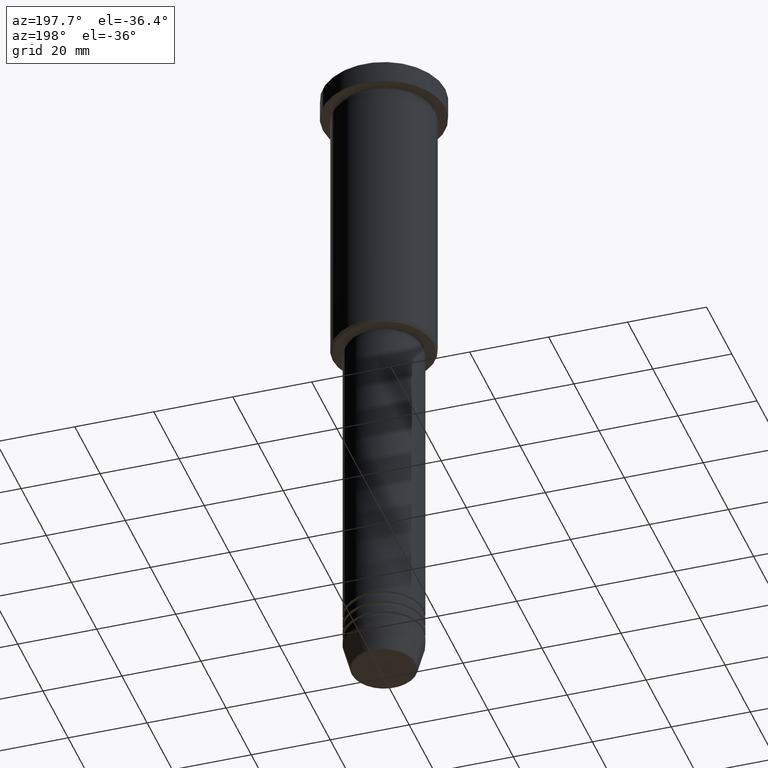
[diagram: clean part render]
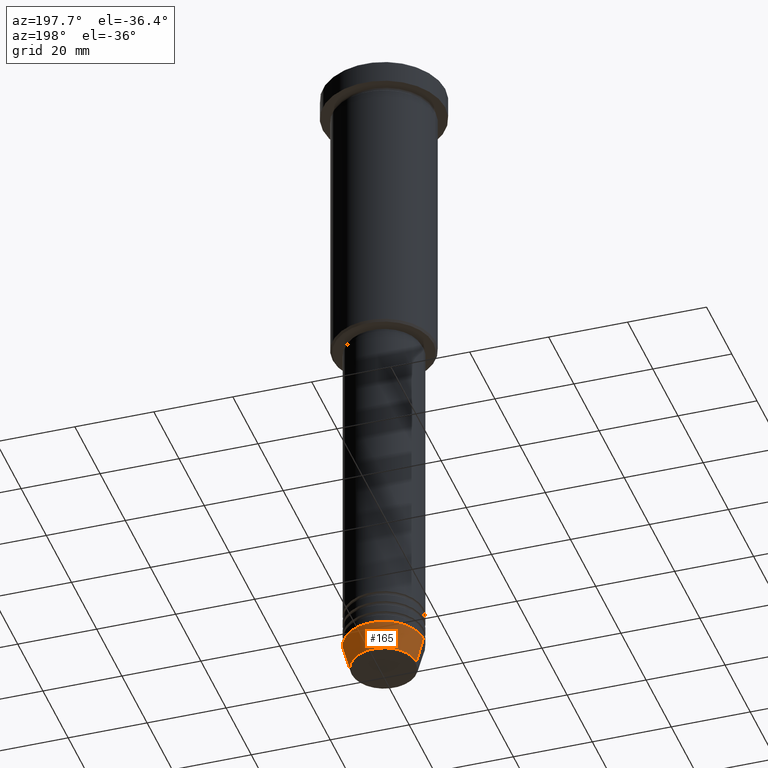
[diagram: same view with one face highlighted and labeled with its STEP entity id]
A machine part, auxiliary view. The second image highlights one B-rep face of the part: STEP entity #165.
In plain terms, the highlighted conical surface has half-angle 15 deg.
Its self-contained STEP definition (entity closure, byte-faithful):
#14 = CONICAL_SURFACE ( 'NONE', #317, 10.00000000000000000, 0.2617993877991500740 ) ;
#39 = DIRECTION ( 'NONE',  ( -0.000000000000000000, -0.000000000000000000, 1.000000000000000000 ) ) ;
#136 = ORIENTED_EDGE ( 'NONE', *, *, #352, .F. ) ;
#165 = ADVANCED_FACE ( 'NONE', ( #230 ), #14, .T. ) ;
#182 = DIRECTION ( 'NONE',  ( -0.000000000000000000, -0.000000000000000000, 1.000000000000000000 ) ) ;
#186 = EDGE_LOOP ( 'NONE', ( #766, #930, #136, #1143 ) ) ;
#230 = FACE_OUTER_BOUND ( 'NONE', #186, .T. ) ;
#234 = DIRECTION ( 'NONE',  ( 1.000000000000000000, 0.000000000000000000, 0.000000000000000000 ) ) ;
#247 = CIRCLE ( 'NONE', #914, 8.223655072137198374 ) ;
#317 = AXIS2_PLACEMENT_3D ( 'NONE', #348, #39, #234 ) ;
#336 = LINE ( 'NONE', #546, #856 ) ;
#348 = CARTESIAN_POINT ( 'NONE',  ( 0.000000000000000000, 0.000000000000000000, -164.0000000000000000 ) ) ;
#352 = EDGE_CURVE ( 'NONE', #863, #607, #518, .T. ) ;
#356 = DIRECTION ( 'NONE',  ( -0.000000000000000000, -0.000000000000000000, 1.000000000000000000 ) ) ;
#373 = DIRECTION ( 'NONE',  ( 1.000000000000000000, 0.000000000000000000, 0.000000000000000000 ) ) ;
#395 = VERTEX_POINT ( 'NONE', #768 ) ;
#518 = CIRCLE ( 'NONE', #580, 10.00000000000000000 ) ;
#527 = DIRECTION ( 'NONE',  ( 0.2588190451025213501, 0.000000000000000000, 0.9659258262890680902 ) ) ;
#546 = CARTESIAN_POINT ( 'NONE',  ( 10.00000000000000000, 0.000000000000000000, -164.0000000000000000 ) ) ;
#570 = EDGE_CURVE ( 'NONE', #1112, #863, #336, .T. ) ;
#580 = AXIS2_PLACEMENT_3D ( 'NONE', #916, #356, #941 ) ;
#607 = VERTEX_POINT ( 'NONE', #1002 ) ;
#725 = CARTESIAN_POINT ( 'NONE',  ( 8.223655072137198374, 0.000000000000000000, -170.6294095225512422 ) ) ;
#739 = CARTESIAN_POINT ( 'NONE',  ( 0.000000000000000000, 0.000000000000000000, -170.6294095225512422 ) ) ;
#766 = ORIENTED_EDGE ( 'NONE', *, *, #1157, .T. ) ;
#768 = CARTESIAN_POINT ( 'NONE',  ( -8.223655072137198374, 1.115877042642912448E-15, -170.6294095225512422 ) ) ;
#856 = VECTOR ( 'NONE', #527, 1000.000000000000000 ) ;
#859 = CARTESIAN_POINT ( 'NONE',  ( 10.00000000000000000, 0.000000000000000000, -164.0000000000000000 ) ) ;
#863 = VERTEX_POINT ( 'NONE', #859 ) ;
#914 = AXIS2_PLACEMENT_3D ( 'NONE', #739, #182, #373 ) ;
#916 = CARTESIAN_POINT ( 'NONE',  ( 0.000000000000000000, 0.000000000000000000, -164.0000000000000000 ) ) ;
#930 = ORIENTED_EDGE ( 'NONE', *, *, #1121, .T. ) ;
#941 = DIRECTION ( 'NONE',  ( 1.000000000000000000, 0.000000000000000000, 0.000000000000000000 ) ) ;
#980 = DIRECTION ( 'NONE',  ( -0.2588190451025213501, 3.169619151431772337E-17, 0.9659258262890680902 ) ) ;
#999 = LINE ( 'NONE', #1079, #1167 ) ;
#1002 = CARTESIAN_POINT ( 'NONE',  ( -10.00000000000000000, 1.224646799147353256E-15, -164.0000000000000000 ) ) ;
#1079 = CARTESIAN_POINT ( 'NONE',  ( -10.00000000000000000, 1.224646799147353256E-15, -164.0000000000000000 ) ) ;
#1112 = VERTEX_POINT ( 'NONE', #725 ) ;
#1121 = EDGE_CURVE ( 'NONE', #395, #607, #999, .T. ) ;
#1143 = ORIENTED_EDGE ( 'NONE', *, *, #570, .F. ) ;
#1157 = EDGE_CURVE ( 'NONE', #1112, #395, #247, .T. ) ;
#1167 = VECTOR ( 'NONE', #980, 1000.000000000000000 ) ;